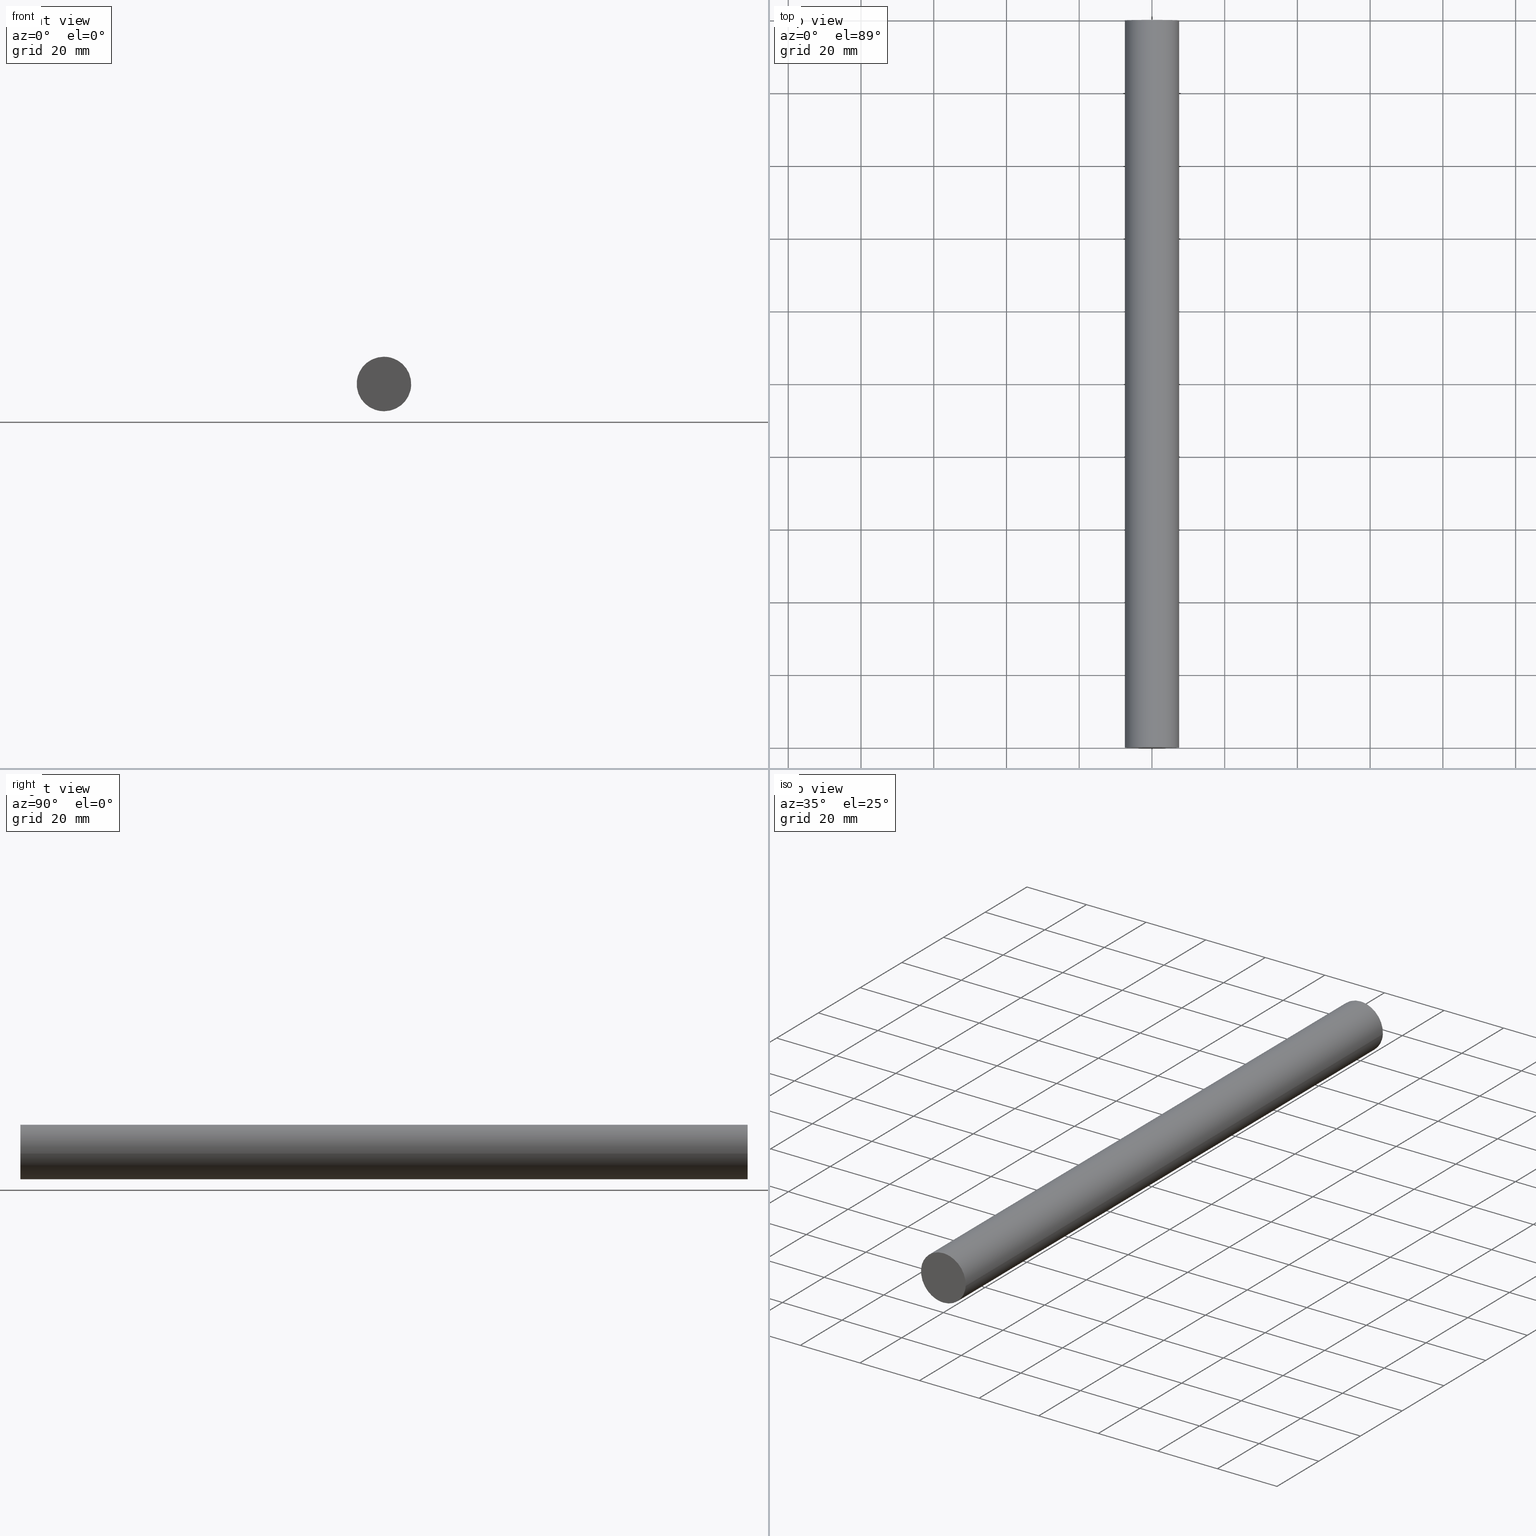
[diagram: canonical four-view strip — front | top / right | iso, engineering-drawing reading convention]
A machine part, canonical four-view strip (front | top / right | iso — engineering-drawing reading convention). The complete STEP part file that produces these views, byte-faithful:
ISO-10303-21;
HEADER;
/****************************************************************
 * Generated by software with PDE/Lib inside                    *
 * PDElib Version 4.4.1-0003, patched  Thursday August 19 11:58 *
 * International Technegroup Inc. (www.iti-oh.com)              *
 ****************************************************************/
FILE_DESCRIPTION((''),'2;1');
FILE_NAME('','2005-12-15T09:59:36',(''),(''),'','CADfix','');
FILE_SCHEMA(('AUTOMOTIVE_DESIGN'));
ENDSEC;
DATA;
#5=APPLICATION_CONTEXT('automotive design');
#6=APPLICATION_PROTOCOL_DEFINITION('Draft International Standard','automotive_design',1998,#5);
#7=PRODUCT_CONTEXT('None',#5,'mechanical');
#8=PRODUCT('rubber foam','','None',(#7));
#9=PRODUCT_RELATED_PRODUCT_CATEGORY('part','description',(#8));
#10=PRODUCT_DEFINITION_FORMATION('None','None',#8);
#11=PRODUCT_DEFINITION_CONTEXT('part definition',#5,'design');
#12=PRODUCT_DEFINITION('None','None',#10,#11);
#18=(NAMED_UNIT(*)PLANE_ANGLE_UNIT()SI_UNIT($,.RADIAN.));
#19=DIMENSIONAL_EXPONENTS(0.0,0.0,0.0,0.0,0.0,0.0,0.0);
#20=PLANE_ANGLE_MEASURE_WITH_UNIT(PLANE_ANGLE_MEASURE(0.017453292500000),#18);
#24=(CONVERSION_BASED_UNIT('DEGREE',#20)NAMED_UNIT(#19)PLANE_ANGLE_UNIT());
#28=(NAMED_UNIT(*)SI_UNIT($,.STERADIAN.)SOLID_ANGLE_UNIT());
#32=(LENGTH_UNIT()NAMED_UNIT(*)SI_UNIT(.MILLI.,.METRE.));
#34=UNCERTAINTY_MEASURE_WITH_UNIT(LENGTH_MEASURE(0.001000000000000),#32,'DISTANCE_ACCURACY_VALUE','');
#36=(GEOMETRIC_REPRESENTATION_CONTEXT(3)GLOBAL_UNCERTAINTY_ASSIGNED_CONTEXT((#34))GLOBAL_UNIT_ASSIGNED_CONTEXT((#24,#28,#32))REPRESENTATION_CONTEXT('None','None'));
#37=AXIS2_PLACEMENT_3D('',#38,#39,#40);
#38=CARTESIAN_POINT('',(0.0,0.0,0.0));
#39=DIRECTION('',(0.0,0.0,1.0));
#40=DIRECTION('',(1.0,0.0,0.0));
#41=ADVANCED_BREP_SHAPE_REPRESENTATION('',(#37,#255),#36);
#42=PRODUCT_DEFINITION_SHAPE('','',#12);
#43=SHAPE_DEFINITION_REPRESENTATION(#42,#41);
#44=CARTESIAN_POINT('',(-7.447571447727496,205.000000000000030,0.885256759925689));
#45=CARTESIAN_POINT('',(-7.472907115864541,205.0,0.672110464784833));
#46=CARTESIAN_POINT('',(-7.486010988164000,205.0,0.457864046511427));
#47=CARTESIAN_POINT('',(-7.943875034675429,205.000000000000090,-7.028146941652573));
#48=CARTESIAN_POINT('',(-0.457864046511427,205.0,-7.486010988164000));
#49=CARTESIAN_POINT('',(7.028146941652573,205.000000000000090,-7.943875034675429));
#50=CARTESIAN_POINT('',(7.486010988164000,205.0,-0.457864046511427));
#51=CARTESIAN_POINT('',(-7.447571447727496,-5.125000000000001,0.885256759925689));
#52=CARTESIAN_POINT('',(-7.472907115864541,-5.125000000000000,0.672110464784833));
#53=CARTESIAN_POINT('',(-7.486010988164000,-5.125000000000000,0.457864046511427));
#54=CARTESIAN_POINT('',(-7.943875034675429,-5.125000000000001,-7.028146941652573));
#55=CARTESIAN_POINT('',(-0.457864046511427,-5.125000000000000,-7.486010988164000));
#56=CARTESIAN_POINT('',(7.028146941652573,-5.125000000000001,-7.943875034675429));
#57=CARTESIAN_POINT('',(7.486010988164000,-5.125000000000000,-0.457864046511427));
#65=(BOUNDED_SURFACE()B_SPLINE_SURFACE(2,1,((#44,#51),(#45,#52),(#46,#53),(#47,#54),(#48,#55),(#49,#56),(#50,#57)),.UNSPECIFIED.,.F.,.F.,.U.)B_SPLINE_SURFACE_WITH_KNOTS((3,2,2,3),(2,2),(0.0,0.497056274847715,12.923463146040559,25.349870017233410),(0.0,210.125000000000110),.UNSPECIFIED.)GEOMETRIC_REPRESENTATION_ITEM()RATIONAL_B_SPLINE_SURFACE(((0.977505800795127,0.977505800795127),(0.988284271247462,0.988284271247462),(1.0,1.0),(0.707106781186548,0.707106781186548),(1.0,1.0),(0.707106781186548,0.707106781186548),(1.0,1.0)))REPRESENTATION_ITEM('')SURFACE());
#66=CARTESIAN_POINT('',(-7.447571447677243,-9.086170E-015,0.885256760348477));
#67=VERTEX_POINT('',#66);
#68=CARTESIAN_POINT('',(0.0,0.0,-7.500000000000000));
#69=VERTEX_POINT('',#68);
#70=CARTESIAN_POINT('',(-7.447571447677243,-9.086170E-015,0.885256760348477));
#71=CARTESIAN_POINT('',(-7.500000000000000,0.0,0.444180897816583));
#72=CARTESIAN_POINT('',(-7.500000000000000,0.0,0.0));
#73=CARTESIAN_POINT('',(-7.500000000000000,0.0,-7.500000000000000));
#74=CARTESIAN_POINT('',(0.0,0.0,-7.500000000000000));
#82=(BOUNDED_CURVE()B_SPLINE_CURVE(2,(#70,#71,#72,#73,#74),.UNSPECIFIED.,.F.,.U.)B_SPLINE_CURVE_WITH_KNOTS((3,2,3),(0.229562473496456,0.250000000000000,0.500000000000000),.UNSPECIFIED.)CURVE()GEOMETRIC_REPRESENTATION_ITEM()RATIONAL_B_SPLINE_CURVE((0.956026754150276,0.976055948311167,1.0,0.707106781186547,1.0))REPRESENTATION_ITEM(''));
#83=EDGE_CURVE('',#67,#69,#82,.T.);
#84=ORIENTED_EDGE('',*,*,#83,.F.);
#85=CARTESIAN_POINT('',(-7.447571447677243,200.0,0.885256760348477));
#86=VERTEX_POINT('',#85);
#87=CARTESIAN_POINT('',(-7.447571447677243,200.0,0.885256760348477));
#88=CARTESIAN_POINT('',(-7.447571447677243,-9.086170E-015,0.885256760348477));
#89=QUASI_UNIFORM_CURVE('',1,(#87,#88),.UNSPECIFIED.,.F.,.U.);
#90=EDGE_CURVE('',#86,#67,#89,.T.);
#91=ORIENTED_EDGE('',*,*,#90,.F.);
#92=CARTESIAN_POINT('',(0.0,200.0,-7.500000000000000));
#93=VERTEX_POINT('',#92);
#94=CARTESIAN_POINT('',(-7.447571447677243,200.000000000000060,0.885256760348477));
#95=CARTESIAN_POINT('',(-7.500000000000000,199.999999999999970,0.444180897816583));
#96=CARTESIAN_POINT('',(-7.500000000000000,200.0,0.0));
#97=CARTESIAN_POINT('',(-7.500000000000000,200.000000000000030,-7.500000000000000));
#98=CARTESIAN_POINT('',(0.0,200.0,-7.500000000000000));
#106=(BOUNDED_CURVE()B_SPLINE_CURVE(2,(#94,#95,#96,#97,#98),.UNSPECIFIED.,.F.,.U.)B_SPLINE_CURVE_WITH_KNOTS((3,2,3),(0.229562473496456,0.250000000000000,0.500000000000000),.UNSPECIFIED.)CURVE()GEOMETRIC_REPRESENTATION_ITEM()RATIONAL_B_SPLINE_CURVE((0.956026754150276,0.976055948311167,1.0,0.707106781186547,1.0))REPRESENTATION_ITEM(''));
#107=EDGE_CURVE('',#86,#93,#106,.T.);
#108=ORIENTED_EDGE('',*,*,#107,.T.);
#109=CARTESIAN_POINT('',(7.486010988136582,200.0,-0.457864046959734));
#110=VERTEX_POINT('',#109);
#111=CARTESIAN_POINT('',(0.0,200.0,-7.500000000000000));
#112=CARTESIAN_POINT('',(7.055295500946081,200.000000000000030,-7.500000000000000));
#113=CARTESIAN_POINT('',(7.486010988136582,199.999999999999970,-0.457864046959734));
#121=(BOUNDED_CURVE()B_SPLINE_CURVE(2,(#111,#112,#113),.UNSPECIFIED.,.F.,.U.)B_SPLINE_CURVE_WITH_KNOTS((3,3),(0.500000000000000,0.739332962221301),.UNSPECIFIED.)CURVE()GEOMETRIC_REPRESENTATION_ITEM()RATIONAL_B_SPLINE_CURVE((1.0,0.719603993307378,0.976072041628909))REPRESENTATION_ITEM(''));
#122=EDGE_CURVE('',#93,#110,#121,.T.);
#123=ORIENTED_EDGE('',*,*,#122,.T.);
#124=CARTESIAN_POINT('',(7.486010988136582,-9.325873E-015,-0.457864046959734));
#125=VERTEX_POINT('',#124);
#126=CARTESIAN_POINT('',(7.486010988136582,200.0,-0.457864046959734));
#127=CARTESIAN_POINT('',(7.486010988136582,-9.325873E-015,-0.457864046959734));
#128=QUASI_UNIFORM_CURVE('',1,(#126,#127),.UNSPECIFIED.,.F.,.U.);
#129=EDGE_CURVE('',#110,#125,#128,.T.);
#130=ORIENTED_EDGE('',*,*,#129,.T.);
#131=CARTESIAN_POINT('',(0.0,0.0,-7.500000000000000));
#132=CARTESIAN_POINT('',(7.055295500946081,0.0,-7.500000000000000));
#133=CARTESIAN_POINT('',(7.486010988136582,-9.325873E-015,-0.457864046959734));
#141=(BOUNDED_CURVE()B_SPLINE_CURVE(2,(#131,#132,#133),.UNSPECIFIED.,.F.,.U.)B_SPLINE_CURVE_WITH_KNOTS((3,3),(0.500000000000000,0.739332962221301),.UNSPECIFIED.)CURVE()GEOMETRIC_REPRESENTATION_ITEM()RATIONAL_B_SPLINE_CURVE((1.0,0.719603993307378,0.976072041628909))REPRESENTATION_ITEM(''));
#142=EDGE_CURVE('',#69,#125,#141,.T.);
#143=ORIENTED_EDGE('',*,*,#142,.F.);
#144=EDGE_LOOP('',(#84,#91,#108,#123,#130,#143));
#145=FACE_OUTER_BOUND('',#144,.T.);
#146=ADVANCED_FACE('',(#145),#65,.T.);
#147=CARTESIAN_POINT('',(7.486010988164000,205.0,-0.457864046511427));
#148=CARTESIAN_POINT('',(7.943875034675429,205.000000000000090,7.028146941652573));
#149=CARTESIAN_POINT('',(0.457864046511427,205.0,7.486010988164000));
#150=CARTESIAN_POINT('',(-6.611576181296258,205.000000000000060,7.918396475493956));
#151=CARTESIAN_POINT('',(-7.447571447727496,205.000000000000030,0.885256759925689));
#152=CARTESIAN_POINT('',(7.486010988164000,-5.125000000000000,-0.457864046511427));
#153=CARTESIAN_POINT('',(7.943875034675429,-5.125000000000001,7.028146941652573));
#154=CARTESIAN_POINT('',(0.457864046511427,-5.125000000000000,7.486010988164000));
#155=CARTESIAN_POINT('',(-6.611576181296258,-5.124999999999999,7.918396475493956));
#156=CARTESIAN_POINT('',(-7.447571447727496,-5.125000000000001,0.885256759925689));
#164=(BOUNDED_SURFACE()B_SPLINE_SURFACE(2,1,((#147,#152),(#148,#153),(#149,#154),(#150,#155),(#151,#156)),.UNSPECIFIED.,.F.,.F.,.U.)B_SPLINE_SURFACE_WITH_KNOTS((3,2,3),(2,2),(0.0,12.426406871192849,24.355757467537980),(0.0,210.125000000000110),.UNSPECIFIED.)GEOMETRIC_REPRESENTATION_ITEM()RATIONAL_B_SPLINE_SURFACE(((1.0,1.0),(0.707106781186548,0.707106781186548),(1.0,1.0),(0.718822509939086,0.718822509939086),(0.977505800795127,0.977505800795127)))REPRESENTATION_ITEM('')SURFACE());
#165=CARTESIAN_POINT('',(0.0,0.0,7.500000000000000));
#166=VERTEX_POINT('',#165);
#167=CARTESIAN_POINT('',(0.0,0.0,7.500000000000000));
#168=CARTESIAN_POINT('',(-6.661308943873630,0.0,7.500000000000000));
#169=CARTESIAN_POINT('',(-7.447571447677243,-9.086170E-015,0.885256760348477));
#177=(BOUNDED_CURVE()B_SPLINE_CURVE(2,(#167,#168,#169),.UNSPECIFIED.,.F.,.U.)B_SPLINE_CURVE_WITH_KNOTS((3,3),(0.0,0.229562473496456),.UNSPECIFIED.)CURVE()GEOMETRIC_REPRESENTATION_ITEM()RATIONAL_B_SPLINE_CURVE((1.0,0.731050832875380,0.956026754150276))REPRESENTATION_ITEM(''));
#178=EDGE_CURVE('',#166,#67,#177,.T.);
#179=ORIENTED_EDGE('',*,*,#178,.F.);
#180=CARTESIAN_POINT('',(7.486010988136581,-9.325873E-015,-0.457864046959734));
#181=CARTESIAN_POINT('',(7.500000000000000,0.0,-0.229145725188980));
#182=CARTESIAN_POINT('',(7.500000000000000,0.0,0.0));
#183=CARTESIAN_POINT('',(7.500000000000000,0.0,7.500000000000000));
#184=CARTESIAN_POINT('',(0.0,0.0,7.500000000000000));
#192=(BOUNDED_CURVE()B_SPLINE_CURVE(2,(#180,#181,#182,#183,#184),.UNSPECIFIED.,.F.,.U.)B_SPLINE_CURVE_WITH_KNOTS((3,2,3),(0.739332962221302,0.750000000000000,1.0),.UNSPECIFIED.)CURVE()GEOMETRIC_REPRESENTATION_ITEM()RATIONAL_B_SPLINE_CURVE((0.976072041628910,0.987502787879170,1.0,0.707106781186547,1.0))REPRESENTATION_ITEM(''));
#193=EDGE_CURVE('',#125,#166,#192,.T.);
#194=ORIENTED_EDGE('',*,*,#193,.F.);
#195=ORIENTED_EDGE('',*,*,#129,.F.);
#196=CARTESIAN_POINT('',(0.0,200.0,7.500000000000000));
#197=VERTEX_POINT('',#196);
#198=CARTESIAN_POINT('',(7.486010988136581,199.999999999999970,-0.457864046959734));
#199=CARTESIAN_POINT('',(7.500000000000000,200.000000000000030,-0.229145725188980));
#200=CARTESIAN_POINT('',(7.500000000000000,200.0,0.0));
#201=CARTESIAN_POINT('',(7.500000000000000,200.000000000000030,7.500000000000000));
#202=CARTESIAN_POINT('',(0.0,200.0,7.500000000000000));
#210=(BOUNDED_CURVE()B_SPLINE_CURVE(2,(#198,#199,#200,#201,#202),.UNSPECIFIED.,.F.,.U.)B_SPLINE_CURVE_WITH_KNOTS((3,2,3),(0.739332962221302,0.750000000000000,1.0),.UNSPECIFIED.)CURVE()GEOMETRIC_REPRESENTATION_ITEM()RATIONAL_B_SPLINE_CURVE((0.976072041628910,0.987502787879170,1.0,0.707106781186547,1.0))REPRESENTATION_ITEM(''));
#211=EDGE_CURVE('',#110,#197,#210,.T.);
#212=ORIENTED_EDGE('',*,*,#211,.T.);
#213=CARTESIAN_POINT('',(0.0,200.0,7.500000000000000));
#214=CARTESIAN_POINT('',(-6.661308943873630,199.999999999999890,7.500000000000000));
#215=CARTESIAN_POINT('',(-7.447571447677243,200.000000000000030,0.885256760348477));
#223=(BOUNDED_CURVE()B_SPLINE_CURVE(2,(#213,#214,#215),.UNSPECIFIED.,.F.,.U.)B_SPLINE_CURVE_WITH_KNOTS((3,3),(0.0,0.229562473496456),.UNSPECIFIED.)CURVE()GEOMETRIC_REPRESENTATION_ITEM()RATIONAL_B_SPLINE_CURVE((1.0,0.731050832875380,0.956026754150276))REPRESENTATION_ITEM(''));
#224=EDGE_CURVE('',#197,#86,#223,.T.);
#225=ORIENTED_EDGE('',*,*,#224,.T.);
#226=ORIENTED_EDGE('',*,*,#90,.T.);
#227=EDGE_LOOP('',(#179,#194,#195,#212,#225,#226));
#228=FACE_OUTER_BOUND('',#227,.T.);
#229=ADVANCED_FACE('',(#228),#164,.T.);
#230=CARTESIAN_POINT('',(-8.249113984015885,0.0,8.249249970927089));
#231=CARTESIAN_POINT('',(8.249067447689480,0.0,8.249249970927089));
#232=CARTESIAN_POINT('',(-8.249113984015885,0.0,-8.249250373258443));
#233=CARTESIAN_POINT('',(8.249067447689480,0.0,-8.249250373258443));
#234=B_SPLINE_SURFACE_WITH_KNOTS('',1,1,((#230,#232),(#231,#233)),.UNSPECIFIED.,.F.,.F.,.U.,(2,2),(2,2),(0.0,16.498181431705369),(0.0,16.498500344185530),.UNSPECIFIED.);
#235=ORIENTED_EDGE('',*,*,#178,.T.);
#236=ORIENTED_EDGE('',*,*,#83,.T.);
#237=ORIENTED_EDGE('',*,*,#142,.T.);
#238=ORIENTED_EDGE('',*,*,#193,.T.);
#239=EDGE_LOOP('',(#235,#236,#237,#238));
#240=FACE_OUTER_BOUND('',#239,.T.);
#241=ADVANCED_FACE('',(#240),#234,.F.);
#242=CARTESIAN_POINT('',(-8.249113984015885,200.0,8.249249970927089));
#243=CARTESIAN_POINT('',(8.249067447689480,200.0,8.249249970927089));
#244=CARTESIAN_POINT('',(-8.249113984015885,200.0,-8.249250373258443));
#245=CARTESIAN_POINT('',(8.249067447689480,200.0,-8.249250373258443));
#246=B_SPLINE_SURFACE_WITH_KNOTS('',1,1,((#242,#244),(#243,#245)),.UNSPECIFIED.,.F.,.F.,.U.,(2,2),(2,2),(0.0,16.498181431705369),(0.0,16.498500344185530),.UNSPECIFIED.);
#247=ORIENTED_EDGE('',*,*,#211,.F.);
#248=ORIENTED_EDGE('',*,*,#122,.F.);
#249=ORIENTED_EDGE('',*,*,#107,.F.);
#250=ORIENTED_EDGE('',*,*,#224,.F.);
#251=EDGE_LOOP('',(#247,#248,#249,#250));
#252=FACE_OUTER_BOUND('',#251,.T.);
#253=ADVANCED_FACE('',(#252),#246,.T.);
#254=CLOSED_SHELL('',(#146,#229,#241,#253));
#255=MANIFOLD_SOLID_BREP('rubber foam',#254);
#261=(NAMED_UNIT(*)PLANE_ANGLE_UNIT()SI_UNIT($,.RADIAN.));
#262=DIMENSIONAL_EXPONENTS(0.0,0.0,0.0,0.0,0.0,0.0,0.0);
#263=PLANE_ANGLE_MEASURE_WITH_UNIT(PLANE_ANGLE_MEASURE(0.017453292500000),#261);
#267=(CONVERSION_BASED_UNIT('DEGREE',#263)NAMED_UNIT(#262)PLANE_ANGLE_UNIT());
#271=(NAMED_UNIT(*)SI_UNIT($,.STERADIAN.)SOLID_ANGLE_UNIT());
#275=(LENGTH_UNIT()NAMED_UNIT(*)SI_UNIT(.MILLI.,.METRE.));
#277=UNCERTAINTY_MEASURE_WITH_UNIT(LENGTH_MEASURE(0.001000000000000),#275,'DISTANCE_ACCURACY_VALUE','');
#279=(GEOMETRIC_REPRESENTATION_CONTEXT(3)GLOBAL_UNCERTAINTY_ASSIGNED_CONTEXT((#277))GLOBAL_UNIT_ASSIGNED_CONTEXT((#267,#271,#275))REPRESENTATION_CONTEXT('','3D'));
ENDSEC;
END-ISO-10303-21;
